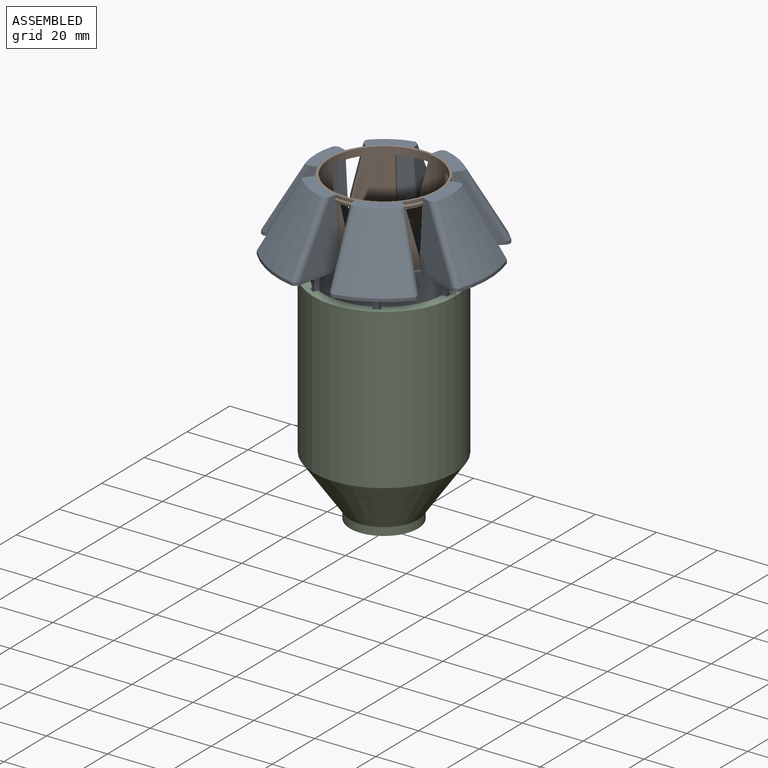
[diagram: assembled view]
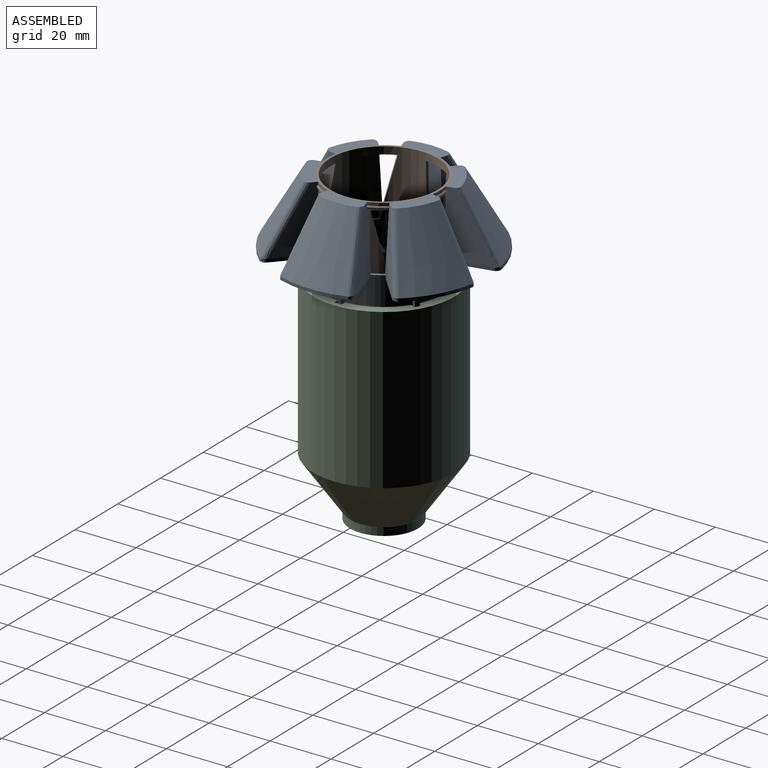
[diagram: assembled view, second angle]
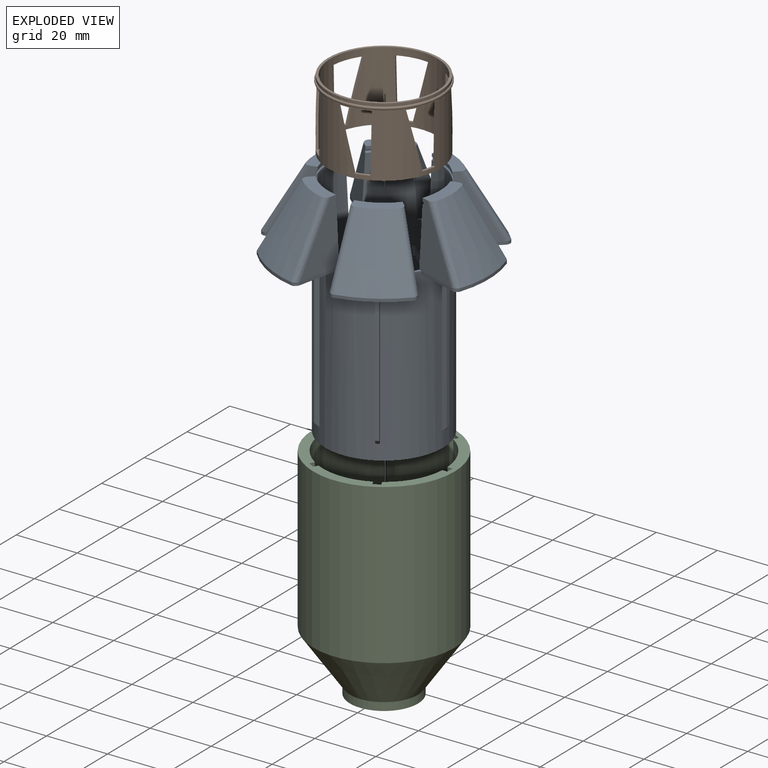
[diagram: exploded view]
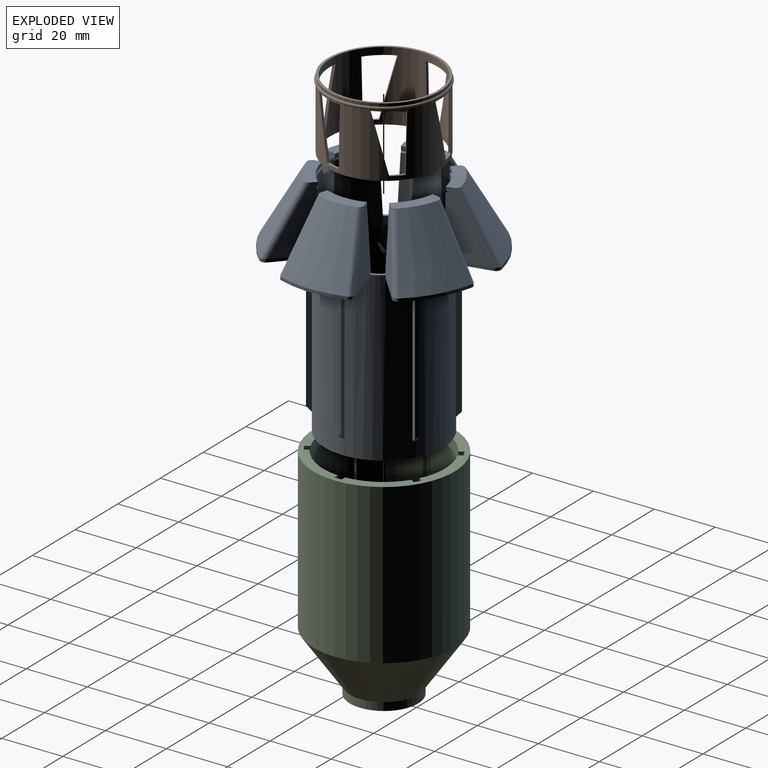
[diagram: exploded view, second angle]
ASSEMBLY  parts=3 mates=2
PART A: 249 faces, bbox 76.7x80.2x83.2 mm
  f0: plane 13.82x10.39mm, normal (0,0,1), area 53.7mm2, adj f9,f55,f59,f60,f64,f65,f246,f247
  f1: plane 13.82x10.39mm, normal (0,0,1), area 53.7mm2, adj f10,f66,f70,f71,f75,f76,f241,f242
  f2: plane 14.83x5.47mm, normal (0,0,1), area 53.7mm2, adj f11,f77,f81,f82,f86,f87,f236,f237
  f3: plane 13.82x10.39mm, normal (0,0,1), area 53.7mm2, adj f6,f88,f92,f93,f97,f98,f231,f232
  f4: plane 13.82x10.39mm, normal (0,0,1), area 53.7mm2, adj f7,f99,f103,f104,f108,f109,f226,f227
  f5: plane 14.83x5.47mm, normal (0,0,1), area 53.7mm2, adj f8,f44,f48,f49,f53,f54,f221,f222
  f6: cylinder r=18.4mm len=11.31mm, axis (0,0,1), area 13.3mm2, adj f3,f92,f93,f214,f231
  f7: cylinder r=18.4mm len=11.31mm, axis (0,0,1), area 13.3mm2, adj f4,f103,f104,f213,f226
  f8: cylinder r=18.4mm len=13.06mm, axis (0,0,1), area 13.3mm2, adj f5,f48,f49,f218,f221
  f9: cylinder r=18.4mm len=11.31mm, axis (0,0,1), area 13.3mm2, adj f0,f59,f60,f217,f246
  f10: cylinder r=18.4mm len=11.31mm, axis (0,0,1), area 13.3mm2, adj f1,f70,f71,f216,f241
  f11: cylinder r=18.4mm len=13.06mm, axis (0,0,1), area 13.3mm2, adj f2,f81,f82,f215,f236
  f12: cylinder r=19.4mm len=73.48mm, axis (0,0,1), area 1268.9mm2, adj f23,f24,f43,f50,f102,f122,f123,f124
  f13: cylinder r=19.4mm len=73.48mm, axis (0,0,1), area 1268.9mm2, adj f18,f38,f39,f91,f105,f122,f171,f172
  f14: cylinder r=19.4mm len=73.48mm, axis (0,0,1), area 1268.9mm2, adj f19,f35,f36,f80,f94,f122,f160,f161
  f15: cylinder r=19.4mm len=73.48mm, axis (0,0,1), area 1268.9mm2, adj f20,f32,f33,f69,f83,f122,f149,f150
  f16: cylinder r=19.4mm len=73.48mm, axis (0,0,1), area 1268.9mm2, adj f21,f29,f30,f58,f72,f122,f138,f139
  f17: cylinder r=19.4mm len=73.48mm, axis (0,0,1), area 1268.9mm2, adj f22,f26,f27,f47,f61,f122,f128,f129
  f18: plane 4.25x1.1mm, normal (0,0,1), area 4mm2, adj f13,f41,f92,f104
  f19: plane 3.98x2.87mm, normal (0,0,1), area 4mm2, adj f14,f41,f81,f93
  f20: plane 3.98x2.87mm, normal (0,0,1), area 4mm2, adj f15,f41,f70,f82
  f21: plane 4.25x1.1mm, normal (0,0,1), area 4mm2, adj f16,f41,f59,f71
  f22: plane 3.98x2.87mm, normal (0,0,1), area 4mm2, adj f17,f41,f48,f60
  f23: plane 3.98x2.87mm, normal (0,0,1), area 4mm2, adj f12,f41,f49,f103
  f24: plane 75x1.61mm, normal (0,1,0), area 110.9mm2, adj f12,f25,f46,f113,f119,f122,f219
  f25: plane 68.4x1.2mm, normal (-1,0,0), area 82.1mm2, adj f24,f26,f46,f113
  f26: plane 75x1.61mm, normal (0,-1,0), area 110.9mm2, adj f17,f25,f46,f113,f119,f122,f220
  f27: plane 75x1.39mm, normal (-0.87,0.5,0), area 110.9mm2, adj f17,f28,f57,f112,f118,f122,f244
  f28: plane 68.4x1.04mm, normal (-0.5,-0.87,0), area 82.1mm2, adj f27,f29,f57,f112
  f29: plane 75x1.39mm, normal (0.87,-0.5,0), area 110.9mm2, adj f16,f28,f57,f112,f118,f122,f245
  f30: plane 75x1.39mm, normal (-0.87,-0.5,0), area 110.9mm2, adj f16,f31,f68,f111,f117,f122,f239
  f31: plane 68.4x1.04mm, normal (0.5,-0.87,0), area 82.1mm2, adj f30,f32,f68,f111
  f32: plane 75x1.39mm, normal (0.87,0.5,0), area 110.9mm2, adj f15,f31,f68,f111,f117,f122,f240
  f33: plane 75x1.61mm, normal (0,-1,0), area 110.9mm2, adj f15,f34,f79,f110,f116,f122,f234
  f34: plane 68.4x1.2mm, normal (1,0,0), area 82.1mm2, adj f33,f35,f79,f110
  f35: plane 75x1.61mm, normal (0,1,0), area 110.9mm2, adj f14,f34,f79,f110,f116,f122,f235
  f36: plane 75x1.39mm, normal (0.87,-0.5,0), area 110.9mm2, adj f14,f37,f90,f115,f121,f122,f229
  f37: plane 68.4x1.04mm, normal (0.5,0.87,0), area 82.1mm2, adj f36,f38,f90,f115
  f38: plane 75x1.39mm, normal (-0.87,0.5,0), area 110.9mm2, adj f13,f37,f90,f115,f121,f122,f230
  f39: plane 75x1.39mm, normal (0.87,0.5,0), area 110.9mm2, adj f13,f40,f101,f114,f120,f122,f224
  f40: plane 68.4x1.04mm, normal (-0.5,0.87,0), area 82.1mm2, adj f39,f43,f101,f114
  f41: cylinder r=18.4mm len=74mm, axis (0,0,1), area 7529.4mm2, adj f18,f19,f20,f21,f22,f23,f42,f48
  f42: cylinder r=18.4mm len=27.16mm, axis (0,0,1), area 250.8mm2, adj f41,f122,f202
  f43: plane 75x1.39mm, normal (-0.87,-0.5,0), area 110.9mm2, adj f12,f40,f101,f114,f120,f122,f225
  f44: cone r=22.28mm half-angle=30deg, axis (0,0,-1), area 414.7mm2, adj f5,f53,f54,f131
  f45: cone r=33.4mm half-angle=30deg, axis (0,0,-1), area 385.5mm2, adj f46,f51,f52,f126
  f46: plane 13.06x3.22mm, normal (0,0,-1), area 25.6mm2, adj f24,f25,f26,f45,f47,f50,f51,f52
  f47: plane 20.01x12.74mm, normal (-0.3,0.95,-0.05), area 151mm2, adj f17,f46,f52,f128,f220
  f48: plane 21.02x13.68mm, normal (0.3,-0.95,0.05), area 172.2mm2, adj f5,f8,f22,f41,f53,f129,f218
  f49: plane 21.02x13.68mm, normal (0.3,0.95,0.05), area 172.2mm2, adj f5,f8,f23,f41,f54,f123,f218
  f50: plane 20.01x12.74mm, normal (-0.3,-0.95,-0.05), area 151mm2, adj f12,f46,f51,f124,f219
  f51: bspline ~35.39x19.44mm, area 21.5mm2, adj f45,f46,f50,f125
  f52: bspline ~35.39x19.44mm, area 21.5mm2, adj f45,f46,f47,f127
  f53: bspline ~38.79x22.11mm, area 60.1mm2, adj f5,f44,f48,f130
  f54: bspline ~38.41x21.91mm, area 60.1mm2, adj f5,f44,f49,f132
  f55: cone r=22.28mm half-angle=30deg, axis (0,0,-1), area 414.7mm2, adj f0,f64,f65,f141
  f56: cone r=33.4mm half-angle=30deg, axis (0,0,-1), area 385.5mm2, adj f57,f62,f63,f136
  f57: plane 11.82x8.1mm, normal (0,0,-1), area 25.6mm2, adj f27,f28,f29,f56,f58,f61,f62,f63
  f58: plane 20.01x13.22mm, normal (-0.97,0.22,-0.05), area 151mm2, adj f16,f57,f63,f138,f245
  f59: plane 21.02x14.15mm, normal (0.97,-0.22,0.05), area 172.2mm2, adj f0,f9,f21,f41,f64,f139,f217
  f60: plane 21.02x11.25mm, normal (-0.67,0.74,0.05), area 172.2mm2, adj f0,f9,f22,f41,f65,f143,f217
  f61: plane 20.01x10.48mm, normal (0.67,-0.74,-0.05), area 151mm2, adj f17,f57,f62,f134,f244
  f62: bspline ~35.39x16.57mm, area 21.5mm2, adj f56,f57,f61,f135
  f63: bspline ~35.39x20.65mm, area 21.5mm2, adj f56,f57,f58,f137
  f64: bspline ~38.79x23.12mm, area 60.1mm2, adj f0,f55,f59,f140
  f65: bspline ~38.41x18.39mm, area 60.1mm2, adj f0,f55,f60,f142
  f66: cone r=22.28mm half-angle=30deg, axis (0,0,-1), area 414.7mm2, adj f1,f75,f76,f152
  f67: cone r=33.4mm half-angle=30deg, axis (0,0,-1), area 385.5mm2, adj f68,f73,f74,f147
  f68: plane 11.82x8.1mm, normal (0,0,-1), area 25.6mm2, adj f30,f31,f32,f67,f69,f72,f73,f74
  f69: plane 20.01x10.48mm, normal (-0.67,-0.74,-0.05), area 151mm2, adj f15,f68,f74,f149,f240
  f70: plane 21.02x11.25mm, normal (0.67,0.74,0.05), area 172.2mm2, adj f1,f10,f20,f41,f75,f150,f216
  f71: plane 21.02x14.15mm, normal (-0.97,-0.22,0.05), area 172.2mm2, adj f1,f10,f21,f41,f76,f154,f216
  f72: plane 20.01x13.22mm, normal (0.97,0.22,-0.05), area 151mm2, adj f16,f68,f73,f145,f239
  f73: bspline ~35.39x20.65mm, area 21.5mm2, adj f67,f68,f72,f146
  f74: bspline ~35.39x16.57mm, area 21.5mm2, adj f67,f68,f69,f148
  f75: bspline ~38.79x18.57mm, area 60.1mm2, adj f1,f66,f70,f151
  f76: bspline ~38.41x22.91mm, area 60.1mm2, adj f1,f66,f71,f153
  f77: cone r=22.28mm half-angle=30deg, axis (0,0,-1), area 414.7mm2, adj f2,f86,f87,f163
  f78: cone r=33.4mm half-angle=30deg, axis (0,0,-1), area 385.5mm2, adj f79,f84,f85,f158
  f79: plane 13.06x3.22mm, normal (0,0,-1), area 25.6mm2, adj f33,f34,f35,f78,f80,f83,f84,f85
  f80: plane 20.01x12.74mm, normal (0.3,-0.95,-0.05), area 151mm2, adj f14,f79,f85,f160,f235
  f81: plane 21.02x13.68mm, normal (-0.3,0.95,0.05), area 172.2mm2, adj f2,f11,f19,f41,f86,f161,f215
  f82: plane 21.02x13.68mm, normal (-0.3,-0.95,0.05), area 172.2mm2, adj f2,f11,f20,f41,f87,f165,f215
  f83: plane 20.01x12.74mm, normal (0.3,0.95,-0.05), area 151mm2, adj f15,f79,f84,f156,f234
  f84: bspline ~35.39x19.44mm, area 21.5mm2, adj f78,f79,f83,f157
  f85: bspline ~35.39x19.44mm, area 21.5mm2, adj f78,f79,f80,f159
  f86: bspline ~38.79x22.11mm, area 60.1mm2, adj f2,f77,f81,f162
  f87: bspline ~38.41x21.91mm, area 60.1mm2, adj f2,f77,f82,f164
  f88: cone r=22.28mm half-angle=30deg, axis (0,0,-1), area 414.7mm2, adj f3,f97,f98,f174
  f89: cone r=33.4mm half-angle=30deg, axis (0,0,-1), area 385.5mm2, adj f90,f95,f96,f169
  f90: plane 11.82x8.1mm, normal (0,0,-1), area 25.6mm2, adj f36,f37,f38,f89,f91,f94,f95,f96
  f91: plane 20.01x13.22mm, normal (0.97,-0.22,-0.05), area 151mm2, adj f13,f90,f96,f171,f230
  f92: plane 21.02x14.15mm, normal (-0.97,0.22,0.05), area 172.2mm2, adj f3,f6,f18,f41,f97,f172,f214
  f93: plane 21.02x11.25mm, normal (0.67,-0.74,0.05), area 172.2mm2, adj f3,f6,f19,f41,f98,f176,f214
  f94: plane 20.01x10.48mm, normal (-0.67,0.74,-0.05), area 151mm2, adj f14,f90,f95,f167,f229
  f95: bspline ~35.39x16.57mm, area 21.5mm2, adj f89,f90,f94,f168
  f96: bspline ~35.39x20.65mm, area 21.5mm2, adj f89,f90,f91,f170
  f97: bspline ~38.79x23.12mm, area 60.1mm2, adj f3,f88,f92,f173
  f98: bspline ~38.41x18.39mm, area 60.1mm2, adj f3,f88,f93,f175
  f99: cone r=22.28mm half-angle=30deg, axis (0,0,-1), area 414.7mm2, adj f4,f108,f109,f180
  f100: cone r=33.4mm half-angle=30deg, axis (0,0,-1), area 385.5mm2, adj f101,f106,f107,f185
  f101: plane 11.82x8.1mm, normal (0,0,-1), area 25.6mm2, adj f39,f40,f43,f100,f102,f105,f106,f107
  f102: plane 20.01x10.48mm, normal (0.67,0.74,-0.05), area 151mm2, adj f12,f101,f107,f187,f225
  f103: plane 21.02x11.25mm, normal (-0.67,-0.74,0.05), area 172.2mm2, adj f4,f7,f23,f41,f108,f178,f213
  f104: plane 21.02x14.15mm, normal (0.97,0.22,0.05), area 172.2mm2, adj f4,f7,f18,f41,f109,f182,f213
  f105: plane 20.01x13.22mm, normal (-0.97,-0.22,-0.05), area 151mm2, adj f13,f101,f106,f183,f224
  f106: bspline ~35.39x20.65mm, area 21.5mm2, adj f100,f101,f105,f184
  f107: bspline ~35.39x16.57mm, area 21.5mm2, adj f100,f101,f102,f186
  f108: bspline ~38.79x18.57mm, area 60.1mm2, adj f4,f99,f103,f179
  f109: bspline ~38.41x22.91mm, area 60.1mm2, adj f4,f99,f104,f181
  f110: plane 1.6x1.6mm, normal (0.71,0,-0.71), area 2.7mm2, adj f33,f34,f35,f116
  f111: plane 1.99x1.84mm, normal (0.35,-0.61,-0.71), area 2.7mm2, adj f30,f31,f32,f117
  f112: plane 1.99x1.84mm, normal (-0.35,-0.61,-0.71), area 2.7mm2, adj f27,f28,f29,f118
  f113: plane 1.6x1.6mm, normal (-0.71,0,-0.71), area 2.7mm2, adj f24,f25,f26,f119
  f114: plane 1.99x1.84mm, normal (-0.35,0.61,-0.71), area 2.7mm2, adj f39,f40,f43,f120
  f115: plane 1.99x1.84mm, normal (0.35,0.61,-0.71), area 2.7mm2, adj f36,f37,f38,f121
  f116: plane 5x1.2mm, normal (1,0,0), area 6mm2, adj f33,f35,f110,f122
  f117: plane 5x1.04mm, normal (0.5,-0.87,0), area 6mm2, adj f30,f32,f111,f122
  f118: plane 5x1.04mm, normal (-0.5,-0.87,0), area 6mm2, adj f27,f29,f112,f122
  f119: plane 5x1.2mm, normal (-1,0,0), area 6mm2, adj f24,f26,f113,f122
  f120: plane 5x1.04mm, normal (-0.5,0.87,0), area 6mm2, adj f39,f43,f114,f122
  f121: plane 5x1.04mm, normal (0.5,0.87,0), area 6mm2, adj f36,f38,f115,f122
  f122: plane 38.8x38.8mm, normal (0,0,-1), area 128.4mm2, adj f12,f13,f14,f15,f16,f17,f24,f26
  f123: plane 12.7x4mm, normal (0.3,0.95,0), area 13.3mm2, adj f12,f49,f132,f133
  f124: plane 12.73x4.02mm, normal (-0.3,-0.95,0), area 13.4mm2, adj f12,f50,f125,f133
  f125: extruded ~1x0.82mm, area 1mm2, adj f51,f124,f126,f133
  f126: cylinder r=33.4mm len=21.08mm, axis (0,0,1), area 21.4mm2, adj f45,f125,f127,f133
  f127: extruded ~1x0.82mm, area 1mm2, adj f52,f126,f128,f133
  f128: plane 12.73x4.02mm, normal (-0.3,0.95,0), area 13.4mm2, adj f17,f47,f127,f133
  f129: plane 12.7x4mm, normal (0.3,-0.95,0), area 13.3mm2, adj f17,f48,f130,f133
  f130: extruded ~2.18x1.02mm, area 2.6mm2, adj f53,f129,f131,f133
  f131: cylinder r=34.4mm len=21.76mm, axis (0,0,1), area 22.1mm2, adj f44,f130,f132,f133
  f132: extruded ~2.18x1.02mm, area 2.6mm2, adj f54,f123,f131,f133
  f133: plane 23.82x16.65mm, normal (0,0,-1), area 52mm2, adj f12,f17,f123,f124,f125,f126,f127,f128
  f134: plane 9.84x9.02mm, normal (0.68,-0.74,0), area 13.4mm2, adj f17,f61,f135,f144
  f135: extruded ~1x0.88mm, area 1mm2, adj f62,f134,f136,f144
  f136: cylinder r=33.4mm len=18.26mm, axis (0,0,1), area 21.4mm2, adj f56,f135,f137,f144
  f137: extruded ~1x0.71mm, area 1mm2, adj f63,f136,f138,f144
  f138: plane 13.04x2.89mm, normal (-0.98,0.22,0), area 13.4mm2, adj f16,f58,f137,f144
  f139: plane 13x2.88mm, normal (0.98,-0.22,0), area 13.3mm2, adj f16,f59,f140,f144
  f140: extruded ~1.89x1.45mm, area 2.6mm2, adj f64,f139,f141,f144
  f141: cylinder r=34.4mm len=18.84mm, axis (0,0,1), area 22.1mm2, adj f55,f140,f142,f144
  f142: extruded ~2.35x1mm, area 2.6mm2, adj f65,f141,f143,f144
  f143: plane 9.81x8.99mm, normal (-0.68,0.74,0), area 13.3mm2, adj f17,f60,f142,f144
  f144: plane 23.99x22.26mm, normal (0,0,-1), area 52mm2, adj f16,f17,f134,f135,f136,f137,f138,f139
  f145: plane 13.04x2.89mm, normal (0.98,0.22,0), area 13.4mm2, adj f16,f72,f146,f155
  f146: extruded ~1x0.71mm, area 1mm2, adj f73,f145,f147,f155
  f147: cylinder r=33.4mm len=18.26mm, axis (0,0,1), area 21.4mm2, adj f67,f146,f148,f155
  f148: extruded ~1x0.88mm, area 1mm2, adj f74,f147,f149,f155
  f149: plane 9.84x9.02mm, normal (-0.68,-0.74,0), area 13.4mm2, adj f15,f69,f148,f155
  f150: plane 9.81x8.99mm, normal (0.68,0.74,0), area 13.3mm2, adj f15,f70,f151,f155
  f151: extruded ~2.35x1mm, area 2.6mm2, adj f75,f150,f152,f155
  f152: cylinder r=34.4mm len=18.84mm, axis (0,0,1), area 22.1mm2, adj f66,f151,f153,f155
  f153: extruded ~1.89x1.45mm, area 2.6mm2, adj f76,f152,f154,f155
  f154: plane 13x2.88mm, normal (-0.98,-0.22,0), area 13.3mm2, adj f16,f71,f153,f155
  f155: plane 23.99x22.26mm, normal (0,0,-1), area 52mm2, adj f15,f16,f145,f146,f147,f148,f149,f150
  f156: plane 12.73x4.02mm, normal (0.3,0.95,0), area 13.4mm2, adj f15,f83,f157,f166
  f157: extruded ~1x0.82mm, area 1mm2, adj f84,f156,f158,f166
  f158: cylinder r=33.4mm len=21.08mm, axis (0,0,1), area 21.4mm2, adj f78,f157,f159,f166
  f159: extruded ~1x0.82mm, area 1mm2, adj f85,f158,f160,f166
  f160: plane 12.73x4.02mm, normal (0.3,-0.95,0), area 13.4mm2, adj f14,f80,f159,f166
  f161: plane 12.7x4mm, normal (-0.3,0.95,0), area 13.3mm2, adj f14,f81,f162,f166
  f162: extruded ~2.18x1.02mm, area 2.6mm2, adj f86,f161,f163,f166
  f163: cylinder r=34.4mm len=21.76mm, axis (0,0,1), area 22.1mm2, adj f77,f162,f164,f166
  f164: extruded ~2.18x1.02mm, area 2.6mm2, adj f87,f163,f165,f166
  f165: plane 12.7x4mm, normal (-0.3,-0.95,0), area 13.3mm2, adj f15,f82,f164,f166
  f166: plane 23.82x16.65mm, normal (0,0,-1), area 52mm2, adj f14,f15,f156,f157,f158,f159,f160,f161
  f167: plane 9.84x9.02mm, normal (-0.68,0.74,0), area 13.4mm2, adj f14,f94,f168,f177
  f168: extruded ~1x0.88mm, area 1mm2, adj f95,f167,f169,f177
  f169: cylinder r=33.4mm len=18.26mm, axis (0,0,1), area 21.4mm2, adj f89,f168,f170,f177
  f170: extruded ~1x0.71mm, area 1mm2, adj f96,f169,f171,f177
  f171: plane 13.04x2.89mm, normal (0.98,-0.22,0), area 13.4mm2, adj f13,f91,f170,f177
  f172: plane 13x2.88mm, normal (-0.98,0.22,0), area 13.3mm2, adj f13,f92,f173,f177
  f173: extruded ~1.89x1.45mm, area 2.6mm2, adj f97,f172,f174,f177
  f174: cylinder r=34.4mm len=18.84mm, axis (0,0,1), area 22.1mm2, adj f88,f173,f175,f177
  f175: extruded ~2.35x1mm, area 2.6mm2, adj f98,f174,f176,f177
  f176: plane 9.81x8.99mm, normal (0.68,-0.74,0), area 13.3mm2, adj f14,f93,f175,f177
  f177: plane 23.99x22.26mm, normal (0,0,-1), area 52mm2, adj f13,f14,f167,f168,f169,f170,f171,f172
  f178: plane 9.81x8.99mm, normal (-0.68,-0.74,0), area 13.3mm2, adj f12,f103,f179,f188
  f179: extruded ~2.35x1mm, area 2.6mm2, adj f108,f178,f180,f188
  f180: cylinder r=34.4mm len=18.84mm, axis (0,0,1), area 22.1mm2, adj f99,f179,f181,f188
  f181: extruded ~1.89x1.45mm, area 2.6mm2, adj f109,f180,f182,f188
  f182: plane 13x2.88mm, normal (0.98,0.22,0), area 13.3mm2, adj f13,f104,f181,f188
  f183: plane 13.04x2.89mm, normal (-0.98,-0.22,0), area 13.4mm2, adj f13,f105,f184,f188
  f184: extruded ~1x0.71mm, area 1mm2, adj f106,f183,f185,f188
  f185: cylinder r=33.4mm len=18.26mm, axis (0,0,1), area 21.4mm2, adj f100,f184,f186,f188
  f186: extruded ~1x0.88mm, area 1mm2, adj f107,f185,f187,f188
  f187: plane 9.84x9.02mm, normal (0.68,0.74,0), area 13.4mm2, adj f12,f102,f186,f188
  f188: plane 23.99x22.26mm, normal (0,0,-1), area 52mm2, adj f12,f13,f178,f179,f180,f181,f182,f183
  f189: bspline ~47.22x21.27mm, area 109.5mm2, adj f41,f122,f191,f212
  f190: bspline ~47.22x21.98mm, area 109.3mm2, adj f41,f122,f191,f212
  f191: bspline ~47.22x19.71mm, area 36.1mm2, adj f122,f189,f190,f212
  f192: bspline ~47.22x27.65mm, area 109.5mm2, adj f41,f122,f194,f211
  f193: bspline ~47.22x27.86mm, area 109.3mm2, adj f41,f122,f194,f211
  f194: bspline ~47.22x25.25mm, area 36.1mm2, adj f122,f192,f193,f211
  f195: bspline ~47.09x26.66mm, area 109.5mm2, adj f41,f122,f197,f210
  f196: bspline ~47.02x26.23mm, area 109.3mm2, adj f41,f122,f197,f210
  f197: bspline ~47.22x24.09mm, area 36.1mm2, adj f122,f195,f196,f210
  f198: bspline ~47.22x21.27mm, area 109.5mm2, adj f41,f122,f200,f207
  f199: bspline ~47.22x21.98mm, area 109.3mm2, adj f41,f122,f200,f207
  f200: bspline ~47.22x19.71mm, area 36.1mm2, adj f122,f198,f199,f207
  f201: bspline ~47.22x27.65mm, area 109.5mm2, adj f41,f122,f203,f208
  f202: bspline ~47.22x27.86mm, area 109.3mm2, adj f41,f42,f122,f203,f208
  f203: bspline ~47.22x25.25mm, area 36.1mm2, adj f122,f201,f202,f208
  f204: bspline ~47.09x26.66mm, area 109.5mm2, adj f41,f122,f206,f209
  f205: bspline ~47.02x26.23mm, area 109.3mm2, adj f41,f122,f206,f209
  f206: bspline ~47.22x24.09mm, area 36.1mm2, adj f122,f204,f205,f209
  f207: bspline ~2.99x2.7mm, area 2.1mm2, adj f41,f198,f199,f200
  f208: bspline ~3.69x3.61mm, area 2.1mm2, adj f41,f201,f202,f203
  f209: bspline ~3.54x3.39mm, area 2.1mm2, adj f41,f204,f205,f206
  f210: bspline ~3.54x3.39mm, area 2.1mm2, adj f41,f195,f196,f197
  f211: bspline ~3.69x3.61mm, area 2.1mm2, adj f41,f192,f193,f194
  f212: bspline ~2.99x2.7mm, area 2.1mm2, adj f41,f189,f190,f191
  f213: torus R=18.29mm, axis (0,0,1), area 18.8mm2, adj f7,f41,f103,f104
  f214: torus R=18.29mm, axis (0,0,1), area 18.8mm2, adj f6,f41,f92,f93
  f215: torus R=18.29mm, axis (0,0,1), area 18.8mm2, adj f11,f41,f81,f82
  f216: torus R=18.29mm, axis (0,0,1), area 18.8mm2, adj f10,f41,f70,f71
  f217: torus R=18.29mm, axis (0,0,1), area 18.8mm2, adj f9,f41,f59,f60
  f218: torus R=18.29mm, axis (0,0,1), area 18.8mm2, adj f8,f41,f48,f49
  f219: torus R=18.29mm, axis (0,0,1), area 9mm2, adj f12,f24,f46,f50
  f220: torus R=18.29mm, axis (0,0,1), area 9mm2, adj f17,f26,f46,f47
  f221: torus R=18.29mm, axis (0,0,1), area 1mm2, adj f5,f8,f222,f223
  f222: plane 0.08x0.03mm, normal (0.32,0.95,0), area 0mm2, adj f5,f221
  f223: plane 0.08x0.03mm, normal (0.32,-0.95,0), area 0mm2, adj f5,f221
  f224: torus R=18.29mm, axis (0,0,1), area 9mm2, adj f13,f39,f101,f105
  f225: torus R=18.29mm, axis (0,0,1), area 9mm2, adj f12,f43,f101,f102
  f226: torus R=18.29mm, axis (0,0,1), area 1mm2, adj f4,f7,f227,f228
  f227: plane 0.08x0.02mm, normal (0.98,0.2,0), area 0mm2, adj f4,f226
  f228: plane 0.06x0.05mm, normal (-0.66,-0.75,0), area 0mm2, adj f4,f226
  f229: torus R=18.29mm, axis (0,0,1), area 9mm2, adj f14,f36,f90,f94
  f230: torus R=18.29mm, axis (0,0,1), area 9mm2, adj f13,f38,f90,f91
  f231: torus R=18.29mm, axis (0,0,1), area 1mm2, adj f3,f6,f232,f233
  f232: plane 0.06x0.05mm, normal (0.66,-0.75,0), area 0mm2, adj f3,f231
  f233: plane 0.08x0.02mm, normal (-0.98,0.2,0), area 0mm2, adj f3,f231
  f234: torus R=18.29mm, axis (0,0,1), area 9mm2, adj f15,f33,f79,f83
  f235: torus R=18.29mm, axis (0,0,1), area 9mm2, adj f14,f35,f79,f80
  f236: torus R=18.29mm, axis (0,0,1), area 1mm2, adj f2,f11,f237,f238
  f237: plane 0.08x0.03mm, normal (-0.32,-0.95,0), area 0mm2, adj f2,f236
  f238: plane 0.08x0.03mm, normal (-0.32,0.95,0), area 0mm2, adj f2,f236
  f239: torus R=18.29mm, axis (0,0,1), area 9mm2, adj f16,f30,f68,f72
  f240: torus R=18.29mm, axis (0,0,1), area 9mm2, adj f15,f32,f68,f69
  f241: torus R=18.29mm, axis (0,0,1), area 1mm2, adj f1,f10,f242,f243
  f242: plane 0.08x0.02mm, normal (-0.98,-0.2,0), area 0mm2, adj f1,f241
  f243: plane 0.06x0.05mm, normal (0.66,0.75,0), area 0mm2, adj f1,f241
  f244: torus R=18.29mm, axis (0,0,1), area 9mm2, adj f17,f27,f57,f61
  f245: torus R=18.29mm, axis (0,0,1), area 9mm2, adj f16,f29,f57,f58
  f246: torus R=18.29mm, axis (0,0,1), area 1mm2, adj f0,f9,f247,f248
  f247: plane 0.06x0.05mm, normal (-0.66,0.75,0), area 0mm2, adj f0,f246
  f248: plane 0.08x0.02mm, normal (0.98,-0.2,0), area 0mm2, adj f0,f246
PART B: 30 faces, bbox 40.7x40.7x23 mm
  f0: cylinder r=17.6mm len=35.2mm, axis (0,0,1), area 1709.5mm2, adj f3,f4,f6,f7,f8,f9,f10,f11
  f1: cylinder r=18.4mm len=36.8mm, axis (0,0,1), area 1594.6mm2, adj f3,f5,f6,f7,f8,f9,f10,f11
  f2: cylinder r=18.4mm len=36.8mm, axis (0,0,1), area 115.6mm2, adj f4,f5
  f3: plane 36.8x36.8mm, normal (0,0,-1), area 90.5mm2, adj f0,f1
  f4: plane 36.8x36.8mm, normal (0,0,1), area 90.5mm2, adj f0,f2
  f5: torus R=18.29mm, axis (0,0,1), area 162.2mm2, adj f1,f2
  f6: plane 19.21x4.83mm, normal (-0.97,0,0.24), area 16.4mm2, adj f0,f1,f7,f9
  f7: plane 9.78x2.11mm, normal (0,0,-1), area 8mm2, adj f0,f1,f6,f8
  f8: plane 19.23x0.9mm, normal (1,0,0.02), area 15.6mm2, adj f0,f1,f7,f9
  f9: plane 4.55x1.01mm, normal (0,0,1), area 3.6mm2, adj f0,f1,f6,f8
  f10: plane 19.21x5.2mm, normal (-0.48,0.84,0.24), area 16.4mm2, adj f0,f1,f11,f13
  f11: plane 9.39x4.75mm, normal (0,0,-1), area 8mm2, adj f0,f1,f10,f12
  f12: plane 19.23x0.98mm, normal (0.5,-0.87,0.02), area 15.6mm2, adj f0,f1,f11,f13
  f13: plane 4.29x3.07mm, normal (0,0,1), area 3.6mm2, adj f0,f1,f10,f12
  f14: plane 19.21x4.16mm, normal (0.48,0.84,0.24), area 16.4mm2, adj f0,f1,f15,f17
  f15: plane 8.39x6.49mm, normal (0,0,-1), area 8mm2, adj f0,f1,f14,f16
  f16: plane 19.23x0.86mm, normal (-0.5,-0.87,0.02), area 15.6mm2, adj f0,f1,f15,f17
  f17: plane 4.4x2.87mm, normal (0,0,1), area 3.6mm2, adj f0,f1,f14,f16
  f18: plane 19.21x4.83mm, normal (0.97,0,0.24), area 16.4mm2, adj f0,f1,f19,f21
  f19: plane 9.78x2.11mm, normal (0,0,-1), area 8mm2, adj f0,f1,f18,f20
  f20: plane 19.23x0.9mm, normal (-1,0,0.02), area 15.6mm2, adj f0,f1,f19,f21
  f21: plane 4.55x1.01mm, normal (0,0,1), area 3.6mm2, adj f0,f1,f18,f20
  f22: plane 19.21x5.2mm, normal (0.48,-0.84,0.24), area 16.4mm2, adj f0,f1,f23,f25
  f23: plane 9.39x4.75mm, normal (0,0,-1), area 8mm2, adj f0,f1,f22,f24
  f24: plane 19.23x0.98mm, normal (-0.5,0.87,0.02), area 15.6mm2, adj f0,f1,f23,f25
  f25: plane 4.29x3.07mm, normal (0,0,1), area 3.6mm2, adj f0,f1,f22,f24
  f26: plane 19.21x4.16mm, normal (-0.48,-0.84,0.24), area 16.4mm2, adj f0,f1,f27,f29
  f27: plane 8.39x6.49mm, normal (0,0,-1), area 8mm2, adj f0,f1,f26,f28
  f28: plane 19.23x0.86mm, normal (0.5,0.87,0.02), area 15.6mm2, adj f0,f1,f27,f29
  f29: plane 4.4x2.87mm, normal (0,0,1), area 3.6mm2, adj f0,f1,f26,f28
PART C: 40 faces, bbox 46.4x46.4x72 mm
  f0: plane 22.4x22.4mm, normal (0,0,-1), area 162.6mm2, adj f7,f32,f33,f34,f35,f36,f37
  f1: cylinder r=20mm len=48mm, axis (0,0,1), area 5383.5mm2, adj f4,f8,f9,f11,f12,f13,f15,f16
  f2: cylinder r=6.5mm len=13mm, axis (0,0,1), area 81.7mm2, adj f3,f38
  f3: plane 36x36mm, normal (0,0,1), area 885.1mm2, adj f2,f39
  f4: plane 46.4x46.4mm, normal (0,0,1), area 411.1mm2, adj f1,f5,f9,f10,f11,f13,f14,f15
  f5: cylinder r=23.2mm len=52.24mm, axis (0,0,1), area 7615.1mm2, adj f4,f6
  f6: cone r=23.2mm half-angle=35deg, axis (0,0,1), area 2261mm2, adj f5,f7
  f7: cylinder r=11.2mm len=22.4mm, axis (0,0,1), area 184.5mm2, adj f0,f6
  f8: plane 2.9x2.62mm, normal (0,0,1), area 3.9mm2, adj f1,f9,f10,f11
  f9: plane 45x1.42mm, normal (0.87,0.5,0), area 73.6mm2, adj f1,f4,f8,f10
  f10: plane 45x2.08mm, normal (-0.5,0.87,0), area 108mm2, adj f4,f8,f9,f11
  f11: plane 45x1.42mm, normal (-0.87,-0.5,0), area 73.6mm2, adj f1,f4,f8,f10
  f12: plane 2.4x1.64mm, normal (0,0,1), area 3.9mm2, adj f1,f13,f14,f15
  f13: plane 45x1.64mm, normal (0,-1,0), area 73.6mm2, adj f1,f4,f12,f14
  f14: plane 45x2.4mm, normal (1,0,0), area 108mm2, adj f4,f12,f13,f15
  f15: plane 45x1.64mm, normal (0,1,0), area 73.6mm2, adj f1,f4,f12,f14
  f16: plane 2.9x2.62mm, normal (0,0,1), area 3.9mm2, adj f1,f17,f18,f19
  f17: plane 45x1.42mm, normal (0.87,-0.5,0), area 73.6mm2, adj f1,f4,f16,f18
  f18: plane 45x2.08mm, normal (0.5,0.87,0), area 108mm2, adj f4,f16,f17,f19
  f19: plane 45x1.42mm, normal (-0.87,0.5,0), area 73.6mm2, adj f1,f4,f16,f18
  f20: plane 2.9x2.62mm, normal (0,0,1), area 3.9mm2, adj f1,f21,f22,f23
  f21: plane 45x1.42mm, normal (-0.87,-0.5,0), area 73.6mm2, adj f1,f4,f20,f22
  f22: plane 45x2.08mm, normal (0.5,-0.87,0), area 108mm2, adj f4,f20,f21,f23
  f23: plane 45x1.42mm, normal (0.87,0.5,0), area 73.6mm2, adj f1,f4,f20,f22
  f24: plane 2.9x2.62mm, normal (0,0,1), area 3.9mm2, adj f1,f25,f26,f27
  f25: plane 45x1.42mm, normal (-0.87,0.5,0), area 73.6mm2, adj f1,f4,f24,f26
  f26: plane 45x2.08mm, normal (-0.5,-0.87,0), area 108mm2, adj f4,f24,f25,f27
  f27: plane 45x1.42mm, normal (0.87,-0.5,0), area 73.6mm2, adj f1,f4,f24,f26
  f28: plane 2.4x1.64mm, normal (0,0,1), area 3.9mm2, adj f1,f29,f30,f31
  f29: plane 45x1.64mm, normal (0,1,0), area 73.6mm2, adj f1,f4,f28,f30
  f30: plane 45x2.4mm, normal (-1,0,0), area 108mm2, adj f4,f28,f29,f31
  f31: plane 45x1.64mm, normal (0,-1,0), area 73.6mm2, adj f1,f4,f28,f30
  f32: plane 18.51x6.36mm, normal (-0.5,0.87,0), area 133.7mm2, adj f0,f34,f37,f38
  f33: plane 18.51x6.36mm, normal (-0.5,-0.87,0), area 133.7mm2, adj f0,f34,f36,f38
  f34: cylinder r=8.8mm len=17.7mm, axis (0,0,-1), area 192.4mm2, adj f0,f32,f33,f38
  f35: plane 18.51x7.34mm, normal (1,0,0), area 133.7mm2, adj f0,f36,f37,f38
  f36: cylinder r=8.8mm len=17.7mm, axis (0,0,-1), area 192.4mm2, adj f0,f33,f35,f38
  f37: cylinder r=8.8mm len=17.7mm, axis (0,0,-1), area 192.4mm2, adj f0,f32,f35,f38
  f38: cone r=8.8mm half-angle=45deg, axis (0,0,-1), area 139.6mm2, adj f2,f32,f33,f34,f35,f36,f37
  f39: cone r=18mm half-angle=45deg, axis (0,0,1), area 337.7mm2, adj f1,f3
PLACE A t=(41.42,70.37,4.13)mm
PLACE B rot(axis=(0,0,1),15deg) t=(41.42,70.37,4.13)mm
PLACE C t=(41.42,70.37,0)mm
MATE slider A.f12 <-> C.f39  axis (0,0,1) through (41.42,70.37,40.86)mm
MATE revolute A.f213 <-> B.f5  axis (0,0,1) through (41.42,70.37,78.63)mm
